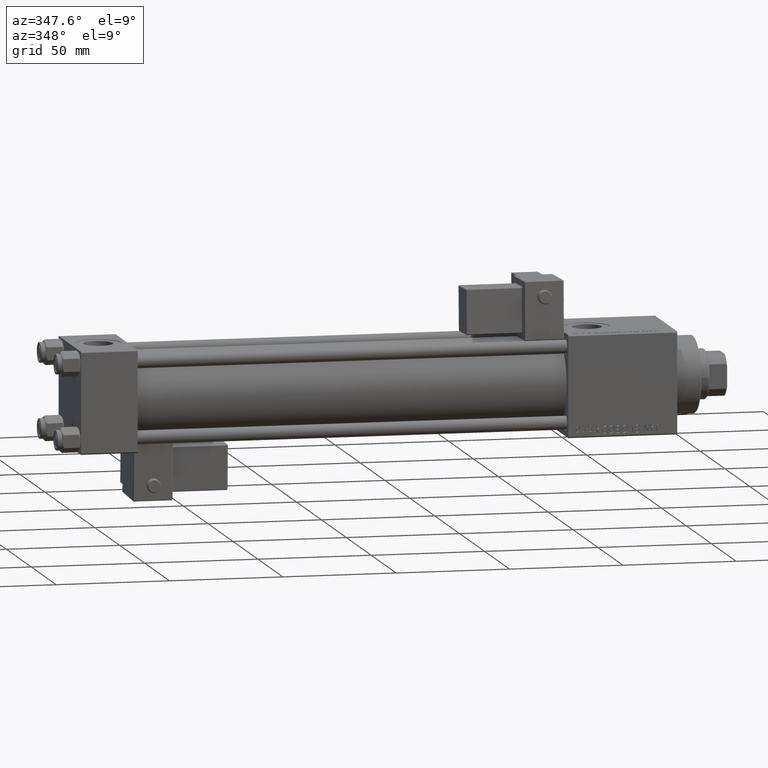
[diagram: clean part render]
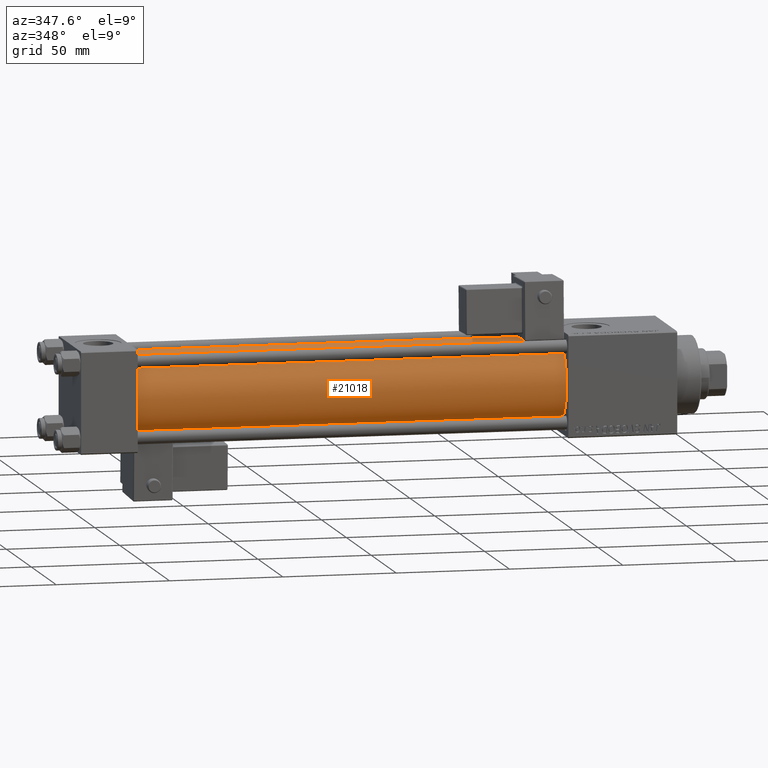
[diagram: same view with one face highlighted and labeled with its STEP entity id]
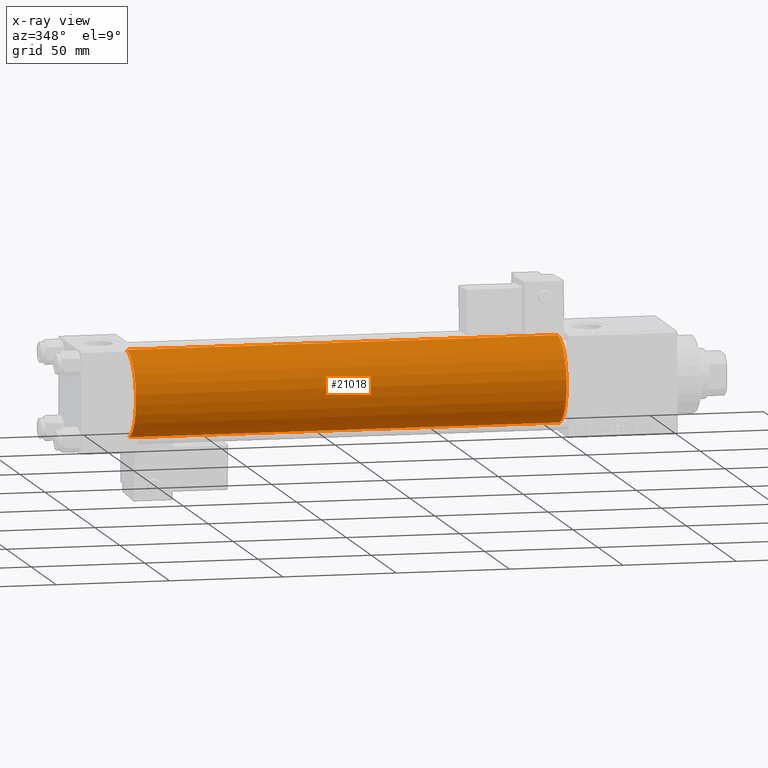
[diagram: x-ray of the same camera — body ghosted, the highlighted face saturated]
A machine part, auxiliary view. The second image highlights one B-rep face of the part: STEP entity #21018.
The next image is the same camera in x-ray: the body ghosted, the highlighted face saturated — about 0% of this face is hidden behind the body in this view.
In plain terms, the highlighted cylindrical surface (partial cylindrical patch) has radius 19 mm, axis along (-1, -0, -0).
Its self-contained STEP definition (entity closure, byte-faithful):
#849 = CARTESIAN_POINT ( 'NONE',  ( 215.0000000000000000, -2.752562955852396712E-16, -19.00000000000000000 ) ) ;
#1795 = CIRCLE ( 'NONE', #6145, 19.00000000000000000 ) ;
#3518 = ORIENTED_EDGE ( 'NONE', *, *, #39894, .T. ) ;
#4138 = CARTESIAN_POINT ( 'NONE',  ( 215.0000000000000000, -2.602085213965210642E-15, 19.00000000000000000 ) ) ;
#4387 = LINE ( 'NONE', #849, #24502 ) ;
#4602 = VERTEX_POINT ( 'NONE', #43928 ) ;
#5446 = AXIS2_PLACEMENT_3D ( 'NONE', #41724, #16973, #8032 ) ;
#6145 = AXIS2_PLACEMENT_3D ( 'NONE', #7848, #12183, #11922 ) ;
#7848 = CARTESIAN_POINT ( 'NONE',  ( 24.99999999999999289, -2.602085213965210642E-15, 0.000000000000000000 ) ) ;
#8032 = DIRECTION ( 'NONE',  ( 0.000000000000000000, 0.000000000000000000, 1.000000000000000000 ) ) ;
#11922 = DIRECTION ( 'NONE',  ( 0.000000000000000000, 0.000000000000000000, 1.000000000000000000 ) ) ;
#12183 = DIRECTION ( 'NONE',  ( 1.000000000000000000, -0.000000000000000000, 0.000000000000000000 ) ) ;
#12845 = VERTEX_POINT ( 'NONE', #45681 ) ;
#13653 = VERTEX_POINT ( 'NONE', #4138 ) ;
#13741 = EDGE_CURVE ( 'NONE', #13653, #40963, #36433, .T. ) ;
#14428 = CARTESIAN_POINT ( 'NONE',  ( 215.0000000000000000, -2.752562955852396712E-16, -19.00000000000000000 ) ) ;
#16116 = EDGE_CURVE ( 'NONE', #4602, #12845, #1795, .T. ) ;
#16973 = DIRECTION ( 'NONE',  ( -1.000000000000000000, -0.000000000000000000, -0.000000000000000000 ) ) ;
#18989 = DIRECTION ( 'NONE',  ( 1.000000000000000000, 0.000000000000000000, 0.000000000000000000 ) ) ;
#19148 = EDGE_CURVE ( 'NONE', #40963, #12845, #4387, .T. ) ;
#19920 = AXIS2_PLACEMENT_3D ( 'NONE', #47534, #18989, #43723 ) ;
#21018 = ADVANCED_FACE ( 'NONE', ( #33300 ), #33839, .T. ) ;
#21234 = DIRECTION ( 'NONE',  ( -1.000000000000000000, -0.000000000000000000, -0.000000000000000000 ) ) ;
#24502 = VECTOR ( 'NONE', #21234, 1000.000000000000000 ) ;
#26292 = ORIENTED_EDGE ( 'NONE', *, *, #16116, .T. ) ;
#32479 = LINE ( 'NONE', #48782, #45561 ) ;
#33300 = FACE_OUTER_BOUND ( 'NONE', #43441, .T. ) ;
#33839 = CYLINDRICAL_SURFACE ( 'NONE', #5446, 19.00000000000000000 ) ;
#36433 = CIRCLE ( 'NONE', #19920, 19.00000000000000000 ) ;
#39894 = EDGE_CURVE ( 'NONE', #13653, #4602, #32479, .T. ) ;
#40963 = VERTEX_POINT ( 'NONE', #14428 ) ;
#41724 = CARTESIAN_POINT ( 'NONE',  ( 215.0000000000000000, -2.602085213965210642E-15, 0.000000000000000000 ) ) ;
#43441 = EDGE_LOOP ( 'NONE', ( #46468, #44599, #3518, #26292 ) ) ;
#43723 = DIRECTION ( 'NONE',  ( 0.000000000000000000, 0.000000000000000000, -1.000000000000000000 ) ) ;
#43928 = CARTESIAN_POINT ( 'NONE',  ( 24.99999999999999289, -2.602085213965210642E-15, 19.00000000000000000 ) ) ;
#44599 = ORIENTED_EDGE ( 'NONE', *, *, #13741, .F. ) ;
#45561 = VECTOR ( 'NONE', #49044, 1000.000000000000000 ) ;
#45681 = CARTESIAN_POINT ( 'NONE',  ( 24.99999999999999289, -2.752562955852396712E-16, -19.00000000000000000 ) ) ;
#46468 = ORIENTED_EDGE ( 'NONE', *, *, #19148, .F. ) ;
#47534 = CARTESIAN_POINT ( 'NONE',  ( 215.0000000000000000, -2.602085213965210642E-15, 0.000000000000000000 ) ) ;
#48782 = CARTESIAN_POINT ( 'NONE',  ( 215.0000000000000000, -2.602085213965210642E-15, 19.00000000000000000 ) ) ;
#49044 = DIRECTION ( 'NONE',  ( -1.000000000000000000, -0.000000000000000000, -0.000000000000000000 ) ) ;